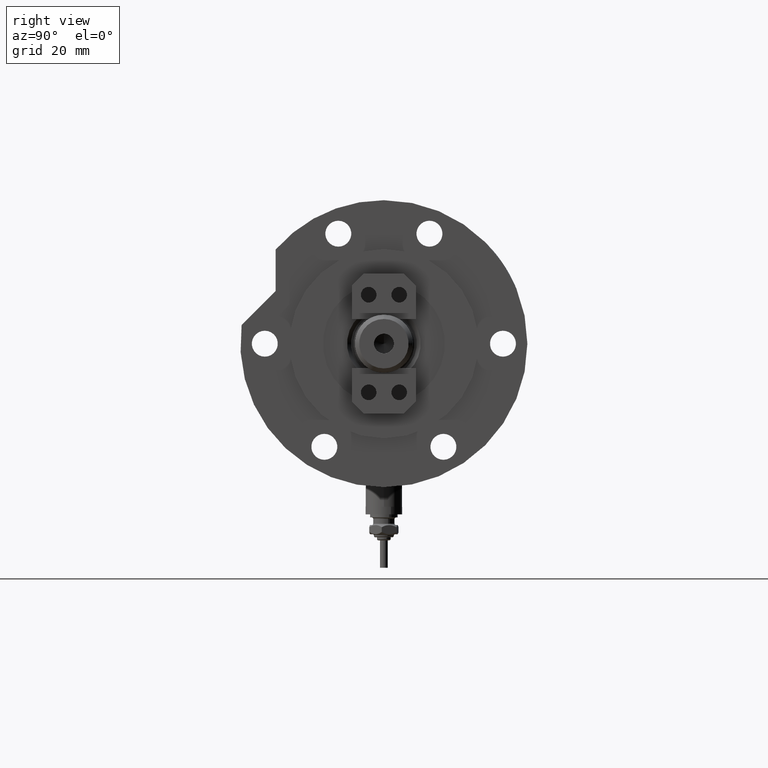
[diagram: clean part render]
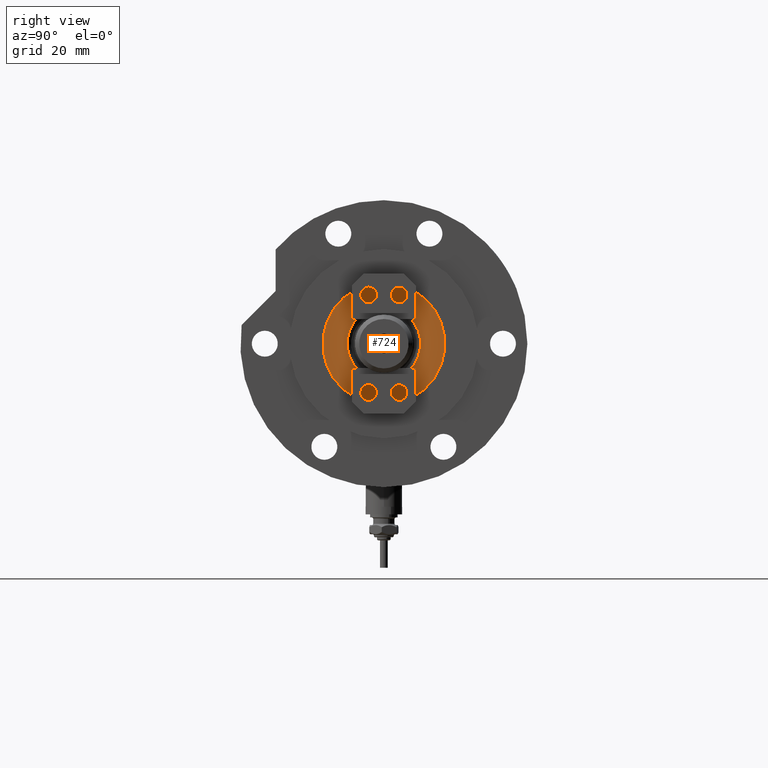
[diagram: same view with one face highlighted and labeled with its STEP entity id]
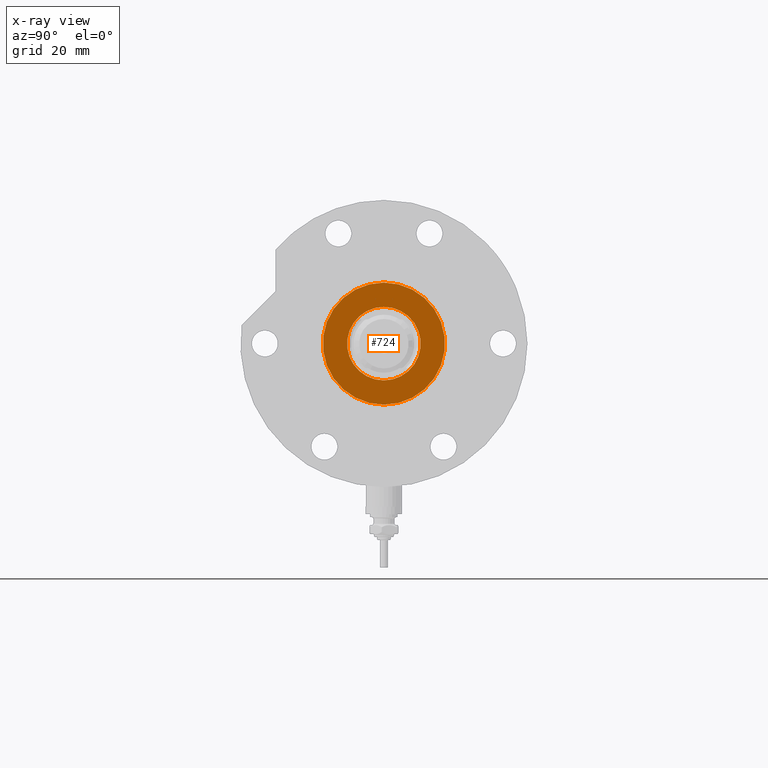
[diagram: x-ray of the same camera — body ghosted, the highlighted face saturated]
A machine part, right view. The second image highlights one B-rep face of the part: STEP entity #724.
The next image is the same camera in x-ray: the body ghosted, the highlighted face saturated — about 0% of this face is hidden behind the body in this view.
In plain terms, the highlighted planar face has unit normal (1, 0, -0).
Its self-contained STEP definition (entity closure, byte-faithful):
#212 = CARTESIAN_POINT ( 'NONE',  ( 0.000000000000000000, 0.000000000000000000, 33.50000000000000000 ) ) ;
#476 = CIRCLE ( 'NONE', #7936, 19.99999999999999645 ) ;
#527 = DIRECTION ( 'NONE',  ( 1.000000000000000000, 0.000000000000000000, 0.000000000000000000 ) ) ;
#610 = FACE_BOUND ( 'NONE', #3529, .T. ) ;
#659 = DIRECTION ( 'NONE',  ( 0.000000000000000000, 0.000000000000000000, 1.000000000000000000 ) ) ;
#724 = ADVANCED_FACE ( 'NONE', ( #610, #817 ), #8674, .T. ) ;
#817 = FACE_OUTER_BOUND ( 'NONE', #8415, .T. ) ;
#852 = DIRECTION ( 'NONE',  ( 0.000000000000000000, 0.000000000000000000, 1.000000000000000000 ) ) ;
#1500 = AXIS2_PLACEMENT_3D ( 'NONE', #1842, #3709, #527 ) ;
#1842 = CARTESIAN_POINT ( 'NONE',  ( 0.000000000000000000, 0.000000000000000000, 33.50000000000000000 ) ) ;
#1854 = AXIS2_PLACEMENT_3D ( 'NONE', #6693, #659, #6328 ) ;
#2131 = ORIENTED_EDGE ( 'NONE', *, *, #3654, .T. ) ;
#2263 = DIRECTION ( 'NONE',  ( 1.000000000000000000, 0.000000000000000000, 0.000000000000000000 ) ) ;
#2264 = VERTEX_POINT ( 'NONE', #5461 ) ;
#2579 = DIRECTION ( 'NONE',  ( 1.000000000000000000, 0.000000000000000000, 0.000000000000000000 ) ) ;
#3529 = EDGE_LOOP ( 'NONE', ( #5002, #7473 ) ) ;
#3564 = CIRCLE ( 'NONE', #1500, 12.05000000000000426 ) ;
#3654 = EDGE_CURVE ( 'NONE', #6471, #6652, #6510, .T. ) ;
#3709 = DIRECTION ( 'NONE',  ( -0.000000000000000000, -0.000000000000000000, -1.000000000000000000 ) ) ;
#4071 = CARTESIAN_POINT ( 'NONE',  ( 19.99999999999999645, 2.449293598294706119E-15, 33.50000000000000000 ) ) ;
#4294 = AXIS2_PLACEMENT_3D ( 'NONE', #6282, #7605, #5036 ) ;
#4594 = EDGE_CURVE ( 'NONE', #6652, #6471, #476, .T. ) ;
#5002 = ORIENTED_EDGE ( 'NONE', *, *, #7575, .T. ) ;
#5036 = DIRECTION ( 'NONE',  ( 1.000000000000000000, 0.000000000000000000, 0.000000000000000000 ) ) ;
#5184 = VERTEX_POINT ( 'NONE', #5325 ) ;
#5325 = CARTESIAN_POINT ( 'NONE',  ( 12.05000000000000426, 0.000000000000000000, 33.50000000000000000 ) ) ;
#5461 = CARTESIAN_POINT ( 'NONE',  ( -12.05000000000000426, 1.475699392972560823E-15, 33.50000000000000000 ) ) ;
#5510 = CARTESIAN_POINT ( 'NONE',  ( -19.99999999999999645, 0.000000000000000000, 33.50000000000000000 ) ) ;
#5733 = CIRCLE ( 'NONE', #4294, 12.05000000000000426 ) ;
#6282 = CARTESIAN_POINT ( 'NONE',  ( 0.000000000000000000, 0.000000000000000000, 33.50000000000000000 ) ) ;
#6328 = DIRECTION ( 'NONE',  ( 1.000000000000000000, 0.000000000000000000, -0.000000000000000000 ) ) ;
#6471 = VERTEX_POINT ( 'NONE', #4071 ) ;
#6510 = CIRCLE ( 'NONE', #7643, 19.99999999999999645 ) ;
#6652 = VERTEX_POINT ( 'NONE', #5510 ) ;
#6693 = CARTESIAN_POINT ( 'NONE',  ( 0.000000000000000000, 0.000000000000000000, 33.50000000000000000 ) ) ;
#7453 = DIRECTION ( 'NONE',  ( 0.000000000000000000, 0.000000000000000000, 1.000000000000000000 ) ) ;
#7473 = ORIENTED_EDGE ( 'NONE', *, *, #7726, .T. ) ;
#7575 = EDGE_CURVE ( 'NONE', #5184, #2264, #5733, .T. ) ;
#7605 = DIRECTION ( 'NONE',  ( -0.000000000000000000, -0.000000000000000000, -1.000000000000000000 ) ) ;
#7643 = AXIS2_PLACEMENT_3D ( 'NONE', #7925, #7453, #2579 ) ;
#7726 = EDGE_CURVE ( 'NONE', #2264, #5184, #3564, .T. ) ;
#7925 = CARTESIAN_POINT ( 'NONE',  ( 0.000000000000000000, 0.000000000000000000, 33.50000000000000000 ) ) ;
#7936 = AXIS2_PLACEMENT_3D ( 'NONE', #212, #852, #2263 ) ;
#7982 = ORIENTED_EDGE ( 'NONE', *, *, #4594, .T. ) ;
#8415 = EDGE_LOOP ( 'NONE', ( #7982, #2131 ) ) ;
#8674 = PLANE ( 'NONE',  #1854 ) ;